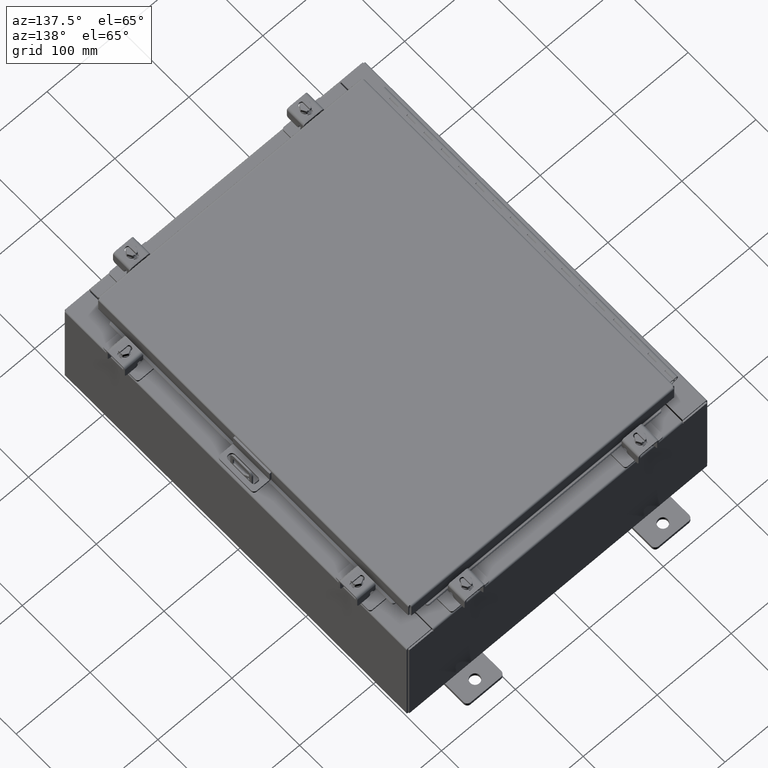
[diagram: clean part render]
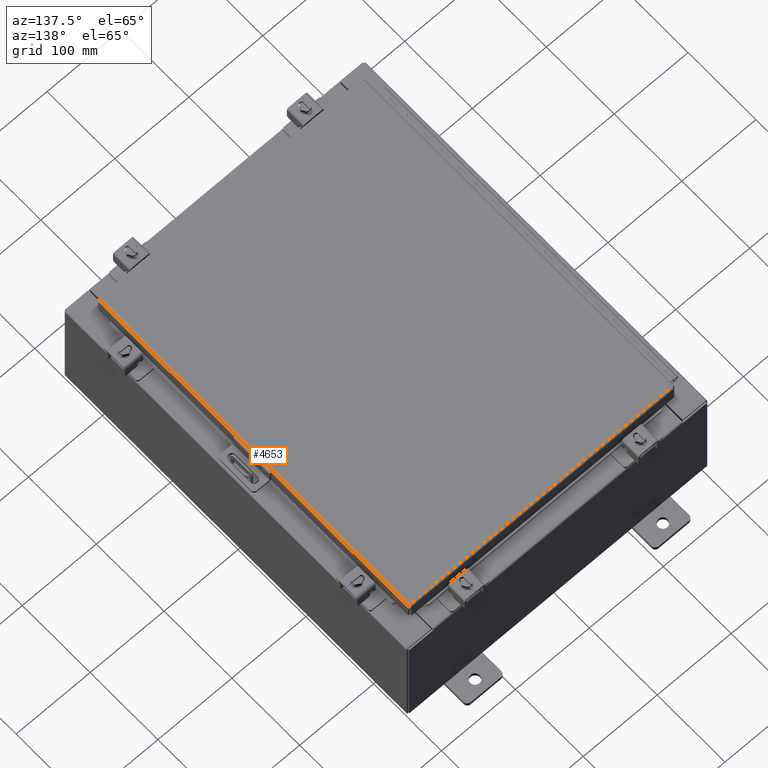
[diagram: same view with one face highlighted and labeled with its STEP entity id]
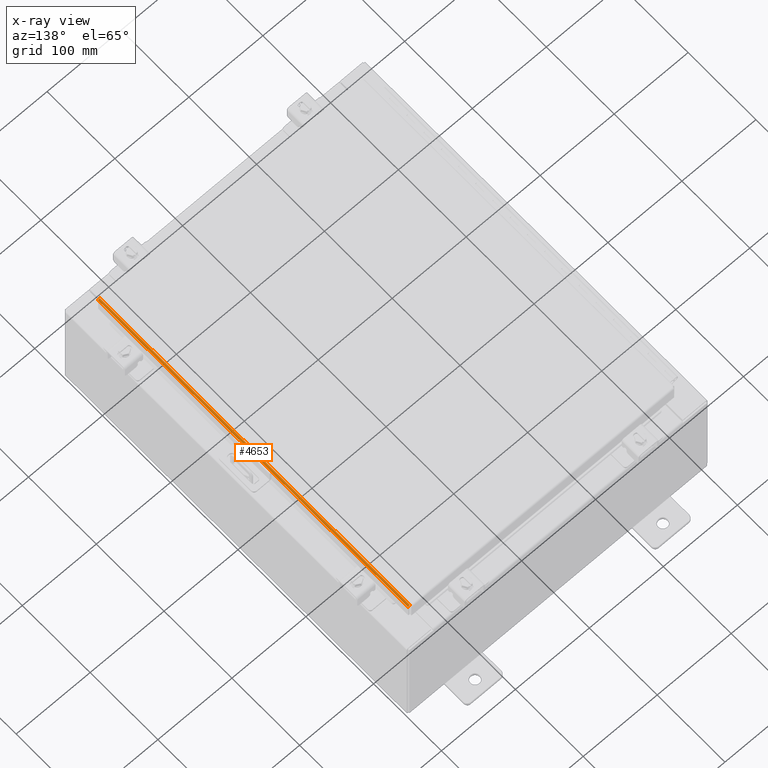
[diagram: x-ray of the same camera — body ghosted, the highlighted face saturated]
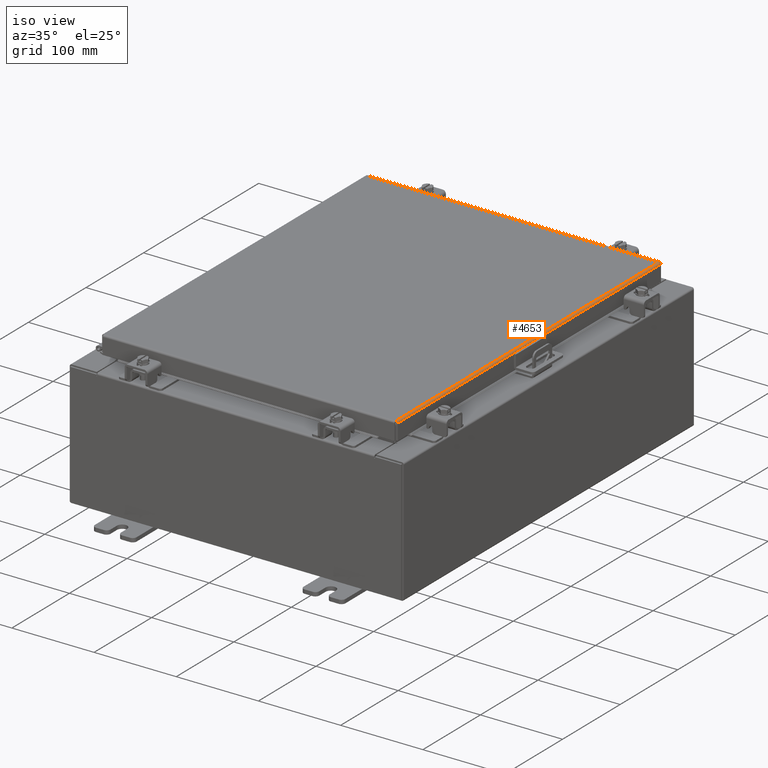
[diagram: same view with one face highlighted and labeled with its STEP entity id]
A machine part, auxiliary view. The second image highlights one B-rep face of the part: STEP entity #4653.
The next image is the same camera in x-ray: the body ghosted, the highlighted face saturated — about 0% of this face is hidden behind the body in this view.
A second angle (iso view) of the same face is appended — the face is thin or edge-on in the first view.
In plain terms, the highlighted cylindrical surface (edge-blend (fillet) strip) has radius 2.2276 mm, axis along (-0, -1, -0).
Its self-contained STEP definition (entity closure, byte-faithful):
#279 = DIRECTION ( 'NONE',  ( -0.0000000000000000000, -1.000000000000000000, -0.0000000000000000000 ) ) ;
#506 = CARTESIAN_POINT ( 'NONE',  ( 7.078000000000001200, -9.005253042344913100, -0.07622009684500735700 ) ) ;
#973 = ORIENTED_EDGE ( 'NONE', *, *, #11322, .F. ) ;
#2965 = CARTESIAN_POINT ( 'NONE',  ( 7.013255289458311600, 9.006109644062712900, -0.002282596256188923400 ) ) ;
#3749 = DIRECTION ( 'NONE',  ( 0.0000000000000000000, -1.000000000000000000, 0.0000000000000000000 ) ) ;
#4653 = ADVANCED_FACE ( 'NONE', ( #5865 ), #21913, .T. ) ;
#4843 = CARTESIAN_POINT ( 'NONE',  ( 6.990300000000002200, -9.006299999999997800, -0.08770000000000030500 ) ) ;
#5253 = CARTESIAN_POINT ( 'NONE',  ( 7.044195747341802900, 9.005824110156782000, -0.01756921792167976500 ) ) ;
#5865 = FACE_OUTER_BOUND ( 'NONE', #28493, .T. ) ;
#6221 = DIRECTION ( 'NONE',  ( 0.0000000000000000000, 1.000000000000000000, 0.0000000000000000000 ) ) ;
#7354 = CARTESIAN_POINT ( 'NONE',  ( 7.066931066258666400, -9.005538576250842200, -0.04353261542147222900 ) ) ;
#7520 = CARTESIAN_POINT ( 'NONE',  ( 7.066931066258670000, 9.005538576250849300, -0.04353261542147223600 ) ) ;
#8734 = EDGE_CURVE ( 'NONE', #10643, #26542, #23678, .T. ) ;
#9569 = CARTESIAN_POINT ( 'NONE',  ( 7.044195747341802000, -9.005824110156780200, -0.01756921792167976500 ) ) ;
#9673 = CARTESIAN_POINT ( 'NONE',  ( 7.001779903154997900, 9.006204822031357100, -2.037881236484656600E-016 ) ) ;
#9776 = CARTESIAN_POINT ( 'NONE',  ( 7.078000000000003800, 9.005253042344914900, -0.07622009684500738500 ) ) ;
#10643 = VERTEX_POINT ( 'NONE', #29064 ) ;
#10674 = VERTEX_POINT ( 'NONE', #26882 ) ;
#10740 = CARTESIAN_POINT ( 'NONE',  ( 6.990300000000002200, -9.006299999999997800, -2.048885995248197400E-016 ) ) ;
#11322 = EDGE_CURVE ( 'NONE', #26542, #10674, #22204, .T. ) ;
#11868 = CARTESIAN_POINT ( 'NONE',  ( 7.013255289458314200, -9.006109644062707500, -0.002282596256188923000 ) ) ;
#13827 = DIRECTION ( 'NONE',  ( 1.000000000000000000, 0.0000000000000000000, 2.725618009642215600E-015 ) ) ;
#14072 = CARTESIAN_POINT ( 'NONE',  ( 7.078000000000002100, -9.005157864376267100, -0.08770000000000007000 ) ) ;
#14158 = CARTESIAN_POINT ( 'NONE',  ( 6.990300000000002200, -9.006299999999997800, -2.048885995248197400E-016 ) ) ;
#14233 = CARTESIAN_POINT ( 'NONE',  ( 6.990300000000002200, 9.006300000000001300, -7.512581982576723400E-016 ) ) ;
#14440 = EDGE_CURVE ( 'NONE', #10674, #24128, #28802, .T. ) ;
#14904 = B_SPLINE_CURVE_WITH_KNOTS ( 'NONE', 3,
 ( #14072, #506, #21005, #7354, #23328, #9569, #25588, #11868, #27855, #14158 ),
 .UNSPECIFIED., .F., .F.,
 ( 4, 2, 2, 2, 4 ),
 ( 0.0000000000000000000, 0.2500000000000000000, 0.5000000000000000000, 0.7500000000000000000, 1.000000000000000000 ),
 .UNSPECIFIED. ) ;
#18874 = CARTESIAN_POINT ( 'NONE',  ( 7.034467384578526600, 9.005919288125422600, -0.01106893374133176100 ) ) ;
#19001 = ORIENTED_EDGE ( 'NONE', *, *, #8734, .F. ) ;
#20790 = AXIS2_PLACEMENT_3D ( 'NONE', #4843, #279, #13827 ) ;
#21005 = CARTESIAN_POINT ( 'NONE',  ( 7.075717403743812600, -9.005348220313557300, -0.06474471054169121700 ) ) ;
#21207 = CARTESIAN_POINT ( 'NONE',  ( 7.060430782078322300, 9.005633754219495300, -0.03380425265820009900 ) ) ;
#21913 = CYLINDRICAL_SURFACE ( 'NONE', #20790, 0.08770000000000026400 ) ;
#22024 = CARTESIAN_POINT ( 'NONE',  ( 7.078000000000002100, -9.005157864376267100, -0.08770000000000007000 ) ) ;
#22204 = B_SPLINE_CURVE_WITH_KNOTS ( 'NONE', 3,
 ( #25669, #9673, #2965, #18874, #5253, #21207, #7520, #23506, #9776, #25782 ),
 .UNSPECIFIED., .F., .F.,
 ( 4, 2, 2, 2, 4 ),
 ( 0.0000000000000000000, 0.2500000000000000000, 0.5000000000000000000, 0.7500000000000000000, 1.000000000000000000 ),
 .UNSPECIFIED. ) ;
#23328 = CARTESIAN_POINT ( 'NONE',  ( 7.060430782078323200, -9.005633754219490000, -0.03380425265820009200 ) ) ;
#23506 = CARTESIAN_POINT ( 'NONE',  ( 7.075717403743816200, 9.005348220313559100, -0.06474471054169121700 ) ) ;
#23678 = LINE ( 'NONE', #10740, #28981 ) ;
#24128 = VERTEX_POINT ( 'NONE', #22024 ) ;
#24177 = CARTESIAN_POINT ( 'NONE',  ( 7.078000000000002100, 0.0000000000000000000, -0.08770000000000007000 ) ) ;
#24723 = ORIENTED_EDGE ( 'NONE', *, *, #28755, .F. ) ;
#25588 = CARTESIAN_POINT ( 'NONE',  ( 7.034467384578531000, -9.005919288125422600, -0.01106893374133176100 ) ) ;
#25669 = CARTESIAN_POINT ( 'NONE',  ( 6.990300000000002200, 9.006300000000001300, -7.512581982576723400E-016 ) ) ;
#25782 = CARTESIAN_POINT ( 'NONE',  ( 7.078000000000002100, 9.005157864376270600, -0.08770000000000007000 ) ) ;
#26542 = VERTEX_POINT ( 'NONE', #14233 ) ;
#26882 = CARTESIAN_POINT ( 'NONE',  ( 7.078000000000002100, 9.005157864376270600, -0.08770000000000007000 ) ) ;
#27855 = CARTESIAN_POINT ( 'NONE',  ( 7.001779903154995200, -9.006204822031357100, -2.038214714022946300E-016 ) ) ;
#28079 = VECTOR ( 'NONE', #3749, 39.37007874015748100 ) ;
#28493 = EDGE_LOOP ( 'NONE', ( #19001, #24723, #28807, #973 ) ) ;
#28755 = EDGE_CURVE ( 'NONE', #24128, #10643, #14904, .T. ) ;
#28802 = LINE ( 'NONE', #24177, #28079 ) ;
#28807 = ORIENTED_EDGE ( 'NONE', *, *, #14440, .F. ) ;
#28981 = VECTOR ( 'NONE', #6221, 39.37007874015748100 ) ;
#29064 = CARTESIAN_POINT ( 'NONE',  ( 6.990300000000002200, -9.006299999999997800, -2.048885995248197400E-016 ) ) ;